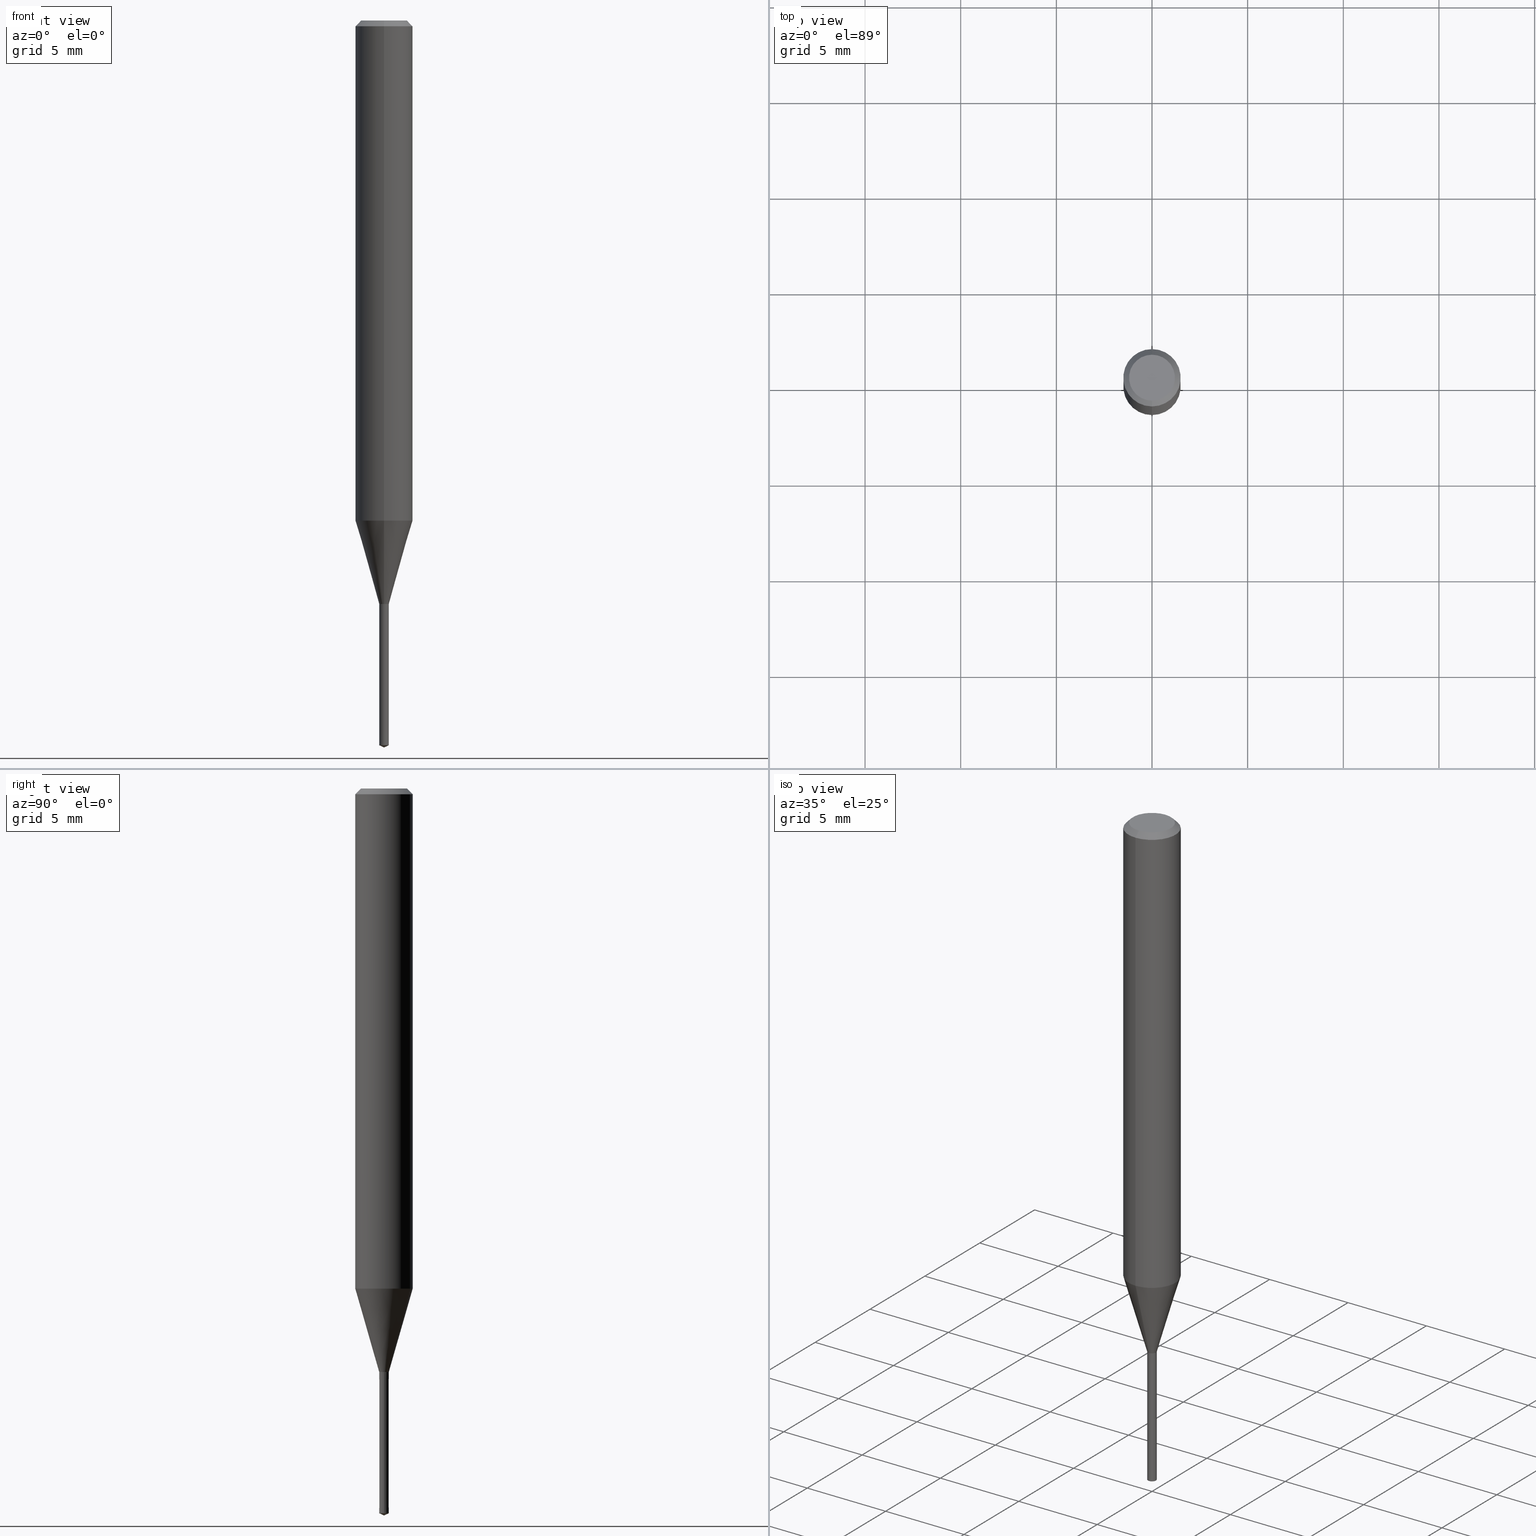
[diagram: canonical four-view strip — front | top / right | iso, engineering-drawing reading convention]
A machine part, canonical four-view strip (front | top / right | iso — engineering-drawing reading convention). The complete STEP part file that produces these views, byte-faithful:
ISO-10303-21;
HEADER;
FILE_DESCRIPTION(('no description'),'unknown implementation level');
FILE_NAME('UTDLX2050-075-Huellk.stp','  ',('CIMSOURCE GmbH'),('CADClick - KiM GmbH - www.kimweb.de'),'unknown preprocess','ACIS','unknown authorization');
FILE_SCHEMA(('automotive_design'));
ENDSEC;
DATA;
#1=MECHANICAL_DESIGN_GEOMETRIC_PRESENTATION_REPRESENTATION(' ',(#14,#15,#16,#17,#18,#19,#20,#21,#22,#23,#24,#25,#26,#27,#28,#29,#30,#31,#32,#33,#34,#35,#36,#37,#38,#39,#40,#41,#42,#43,#44,#45,#46,#47,#48,#49,#50,#51,#52,#53,#54,#55,#56,#57,#58,#59,#60,#61,#62,#63,#64,#65,#66,#67,#68,#69,#70,#71),#10);
#2=PRODUCT_DEFINITION_CONTEXT('',#72,'design');
#3=APPLICATION_PROTOCOL_DEFINITION('INTERNATIONAL STANDARD','automotive_design',1994,#72);
#4=PRODUCT_CATEGORY_RELATIONSHIP('NONE','NONE',#73,#74);
#5=SHAPE_DEFINITION_REPRESENTATION(#75,#76);
#6=PRODUCT_DEFINITION_CONTEXT('',#77,'design');
#7=APPLICATION_PROTOCOL_DEFINITION('INTERNATIONAL STANDARD','automotive_design',1994,#77);
#8=PRODUCT_CATEGORY_RELATIONSHIP('NONE','NONE',#78,#79);
#9=SHAPE_DEFINITION_REPRESENTATION(#80,#81);
#10= (GEOMETRIC_REPRESENTATION_CONTEXT(3)GLOBAL_UNCERTAINTY_ASSIGNED_CONTEXT((#84))GLOBAL_UNIT_ASSIGNED_CONTEXT((#86,#87,#88))REPRESENTATION_CONTEXT('NONE','WORKSPACE'));
#14=STYLED_ITEM('',(#90),#91);
#15=STYLED_ITEM('',(#92),#93);
#16=STYLED_ITEM('',(#94),#95);
#17=STYLED_ITEM('',(#96),#97);
#18=STYLED_ITEM('',(#98),#99);
#19=STYLED_ITEM('',(#100),#101);
#20=STYLED_ITEM('',(#102),#103);
#21=STYLED_ITEM('',(#104),#105);
#22=STYLED_ITEM('',(#106),#107);
#23=STYLED_ITEM('',(#108),#109);
#24=STYLED_ITEM('',(#110),#111);
#25=STYLED_ITEM('',(#112),#113);
#26=STYLED_ITEM('',(#114),#115);
#27=STYLED_ITEM('',(#116),#117);
#28=STYLED_ITEM('',(#118),#119);
#29=STYLED_ITEM('',(#120),#121);
#30=STYLED_ITEM('',(#122),#123);
#31=STYLED_ITEM('',(#124),#125);
#32=STYLED_ITEM('',(#126),#127);
#33=STYLED_ITEM('',(#128),#129);
#34=STYLED_ITEM('',(#130),#131);
#35=STYLED_ITEM('',(#132),#133);
#36=STYLED_ITEM('',(#134),#135);
#37=STYLED_ITEM('',(#136),#137);
#38=STYLED_ITEM('',(#138),#139);
#39=STYLED_ITEM('',(#140),#141);
#40=STYLED_ITEM('',(#142),#143);
#41=STYLED_ITEM('',(#144),#145);
#42=STYLED_ITEM('',(#146),#147);
#43=STYLED_ITEM('',(#148),#149);
#44=STYLED_ITEM('',(#150),#151);
#45=STYLED_ITEM('',(#152),#153);
#46=STYLED_ITEM('',(#154),#155);
#47=STYLED_ITEM('',(#156),#157);
#48=STYLED_ITEM('',(#158),#159);
#49=STYLED_ITEM('',(#160),#161);
#50=STYLED_ITEM('',(#162),#163);
#51=STYLED_ITEM('',(#164),#165);
#52=STYLED_ITEM('',(#166),#167);
#53=STYLED_ITEM('',(#168),#169);
#54=STYLED_ITEM('',(#170),#171);
#55=STYLED_ITEM('',(#172),#173);
#56=STYLED_ITEM('',(#174),#175);
#57=STYLED_ITEM('',(#176),#177);
#58=STYLED_ITEM('',(#178),#179);
#59=STYLED_ITEM('',(#180),#181);
#60=STYLED_ITEM('',(#182),#183);
#61=STYLED_ITEM('',(#184),#185);
#62=STYLED_ITEM('',(#186),#187);
#63=STYLED_ITEM('',(#188),#189);
#64=STYLED_ITEM('',(#190),#191);
#65=STYLED_ITEM('',(#192),#193);
#66=STYLED_ITEM('',(#194),#195);
#67=STYLED_ITEM('',(#196),#197);
#68=STYLED_ITEM('',(#198),#199);
#69=STYLED_ITEM('',(#200),#201);
#70=STYLED_ITEM('',(#202),#203);
#71=STYLED_ITEM('',(#204),#205);
#72=APPLICATION_CONTEXT(' ');
#73=PRODUCT_CATEGORY('part','NONE');
#74=PRODUCT_RELATED_PRODUCT_CATEGORY('detail',' ',(#206));
#75=PRODUCT_DEFINITION_SHAPE('NONE','NONE',#207);
#76=ADVANCED_BREP_SHAPE_REPRESENTATION('1',(#157,#208),#10);
#77=APPLICATION_CONTEXT(' ');
#78=PRODUCT_CATEGORY('part','NONE');
#79=PRODUCT_RELATED_PRODUCT_CATEGORY('detail',' ',(#209));
#80=PRODUCT_DEFINITION_SHAPE('NONE','NONE',#210);
#81=ADVANCED_BREP_SHAPE_REPRESENTATION('2',(#123,#211),#10);
#84=UNCERTAINTY_MEASURE_WITH_UNIT(LENGTH_MEASURE(1.0E-006),#86,'','');
#86= (CONVERSION_BASED_UNIT('MILLIMETRE',#214)LENGTH_UNIT()NAMED_UNIT(#217));
#87= (NAMED_UNIT(#219)PLANE_ANGLE_UNIT()SI_UNIT($,.RADIAN.));
#88= (NAMED_UNIT(#219)SOLID_ANGLE_UNIT()SI_UNIT($,.STERADIAN.));
#90=PRESENTATION_STYLE_ASSIGNMENT((#225));
#91=ADVANCED_FACE('',(#226),#227,.T.);
#92=PRESENTATION_STYLE_ASSIGNMENT((#228));
#93=ADVANCED_FACE('',(#229),#230,.T.);
#94=PRESENTATION_STYLE_ASSIGNMENT((#231));
#95=ADVANCED_FACE('',(#232),#233,.T.);
#96=PRESENTATION_STYLE_ASSIGNMENT((#234));
#97=ADVANCED_FACE('',(#235),#236,.T.);
#98=PRESENTATION_STYLE_ASSIGNMENT((#237));
#99=EDGE_CURVE('',#169,#187,#238,.T.);
#100=PRESENTATION_STYLE_ASSIGNMENT((#239));
#101=VERTEX_POINT('',#240);
#102=PRESENTATION_STYLE_ASSIGNMENT((#241));
#103=ADVANCED_FACE('',(#242),#243,.T.);
#104=PRESENTATION_STYLE_ASSIGNMENT((#244));
#105=EDGE_CURVE('',#167,#185,#245,.T.);
#106=PRESENTATION_STYLE_ASSIGNMENT((#246));
#107=EDGE_CURVE('',#141,#117,#247,.T.);
#108=PRESENTATION_STYLE_ASSIGNMENT((#248));
#109=ADVANCED_FACE('',(#249),#250,.T.);
#110=PRESENTATION_STYLE_ASSIGNMENT((#251));
#111=EDGE_CURVE('',#101,#179,#252,.T.);
#112=PRESENTATION_STYLE_ASSIGNMENT((#253));
#113=EDGE_CURVE('',#135,#177,#254,.T.);
#114=PRESENTATION_STYLE_ASSIGNMENT((#255));
#115=EDGE_CURVE('',#127,#179,#256,.T.);
#116=PRESENTATION_STYLE_ASSIGNMENT((#257));
#117=VERTEX_POINT('',#258);
#118=PRESENTATION_STYLE_ASSIGNMENT((#259));
#119=ADVANCED_FACE('',(#260),#261,.T.);
#120=PRESENTATION_STYLE_ASSIGNMENT((#262));
#121=ADVANCED_FACE('',(#263),#264,.T.);
#122=PRESENTATION_STYLE_ASSIGNMENT((#265));
#123=MANIFOLD_SOLID_BREP('2',#266);
#124=PRESENTATION_STYLE_ASSIGNMENT((#267));
#125=EDGE_CURVE('',#127,#135,#268,.T.);
#126=PRESENTATION_STYLE_ASSIGNMENT((#269));
#127=VERTEX_POINT('',#270);
#128=PRESENTATION_STYLE_ASSIGNMENT((#271));
#129=EDGE_CURVE('',#167,#127,#272,.T.);
#130=PRESENTATION_STYLE_ASSIGNMENT((#273));
#131=EDGE_CURVE('',#177,#197,#274,.T.);
#132=PRESENTATION_STYLE_ASSIGNMENT((#275));
#133=EDGE_CURVE('',#193,#195,#276,.T.);
#134=PRESENTATION_STYLE_ASSIGNMENT((#277));
#135=VERTEX_POINT('',#278);
#136=PRESENTATION_STYLE_ASSIGNMENT((#279));
#137=ADVANCED_FACE('',(#280),#281,.T.);
#138=PRESENTATION_STYLE_ASSIGNMENT((#282));
#139=ADVANCED_FACE('',(#283),#284,.T.);
#140=PRESENTATION_STYLE_ASSIGNMENT((#285));
#141=VERTEX_POINT('',#286);
#142=PRESENTATION_STYLE_ASSIGNMENT((#287));
#143=EDGE_CURVE('',#101,#135,#288,.T.);
#144=PRESENTATION_STYLE_ASSIGNMENT((#289));
#145=EDGE_CURVE('',#141,#153,#290,.T.);
#146=PRESENTATION_STYLE_ASSIGNMENT((#291));
#147=EDGE_CURVE('',#187,#117,#292,.T.);
#148=PRESENTATION_STYLE_ASSIGNMENT((#293));
#149=EDGE_CURVE('',#187,#153,#294,.T.);
#150=PRESENTATION_STYLE_ASSIGNMENT((#295));
#151=ADVANCED_FACE('',(#296),#297,.T.);
#152=PRESENTATION_STYLE_ASSIGNMENT((#298));
#153=VERTEX_POINT('',#299);
#154=PRESENTATION_STYLE_ASSIGNMENT((#300));
#155=EDGE_CURVE('',#135,#101,#301,.T.);
#156=PRESENTATION_STYLE_ASSIGNMENT((#302));
#157=MANIFOLD_SOLID_BREP('1',#303);
#158=PRESENTATION_STYLE_ASSIGNMENT((#304));
#159=EDGE_CURVE('',#197,#177,#305,.T.);
#160=PRESENTATION_STYLE_ASSIGNMENT((#306));
#161=EDGE_CURVE('',#193,#167,#307,.T.);
#162=PRESENTATION_STYLE_ASSIGNMENT((#308));
#163=EDGE_CURVE('',#185,#195,#309,.T.);
#164=PRESENTATION_STYLE_ASSIGNMENT((#310));
#165=EDGE_CURVE('',#153,#187,#311,.T.);
#166=PRESENTATION_STYLE_ASSIGNMENT((#312));
#167=VERTEX_POINT('',#313);
#168=PRESENTATION_STYLE_ASSIGNMENT((#314));
#169=VERTEX_POINT('',#315);
#170=PRESENTATION_STYLE_ASSIGNMENT((#316));
#171=EDGE_CURVE('',#117,#141,#317,.T.);
#172=PRESENTATION_STYLE_ASSIGNMENT((#318));
#173=EDGE_CURVE('',#197,#101,#319,.T.);
#174=PRESENTATION_STYLE_ASSIGNMENT((#320));
#175=ADVANCED_FACE('',(#321),#322,.T.);
#176=PRESENTATION_STYLE_ASSIGNMENT((#323));
#177=VERTEX_POINT('',#324);
#178=PRESENTATION_STYLE_ASSIGNMENT((#325));
#179=VERTEX_POINT('',#326);
#180=PRESENTATION_STYLE_ASSIGNMENT((#327));
#181=EDGE_CURVE('',#195,#193,#328,.T.);
#182=PRESENTATION_STYLE_ASSIGNMENT((#329));
#183=EDGE_CURVE('',#179,#127,#330,.T.);
#184=PRESENTATION_STYLE_ASSIGNMENT((#331));
#185=VERTEX_POINT('',#332);
#186=PRESENTATION_STYLE_ASSIGNMENT((#333));
#187=VERTEX_POINT('',#334);
#188=PRESENTATION_STYLE_ASSIGNMENT((#335));
#189=ADVANCED_FACE('',(#336),#337,.T.);
#190=PRESENTATION_STYLE_ASSIGNMENT((#338));
#191=EDGE_CURVE('',#153,#169,#339,.T.);
#192=PRESENTATION_STYLE_ASSIGNMENT((#340));
#193=VERTEX_POINT('',#341);
#194=PRESENTATION_STYLE_ASSIGNMENT((#342));
#195=VERTEX_POINT('',#343);
#196=PRESENTATION_STYLE_ASSIGNMENT((#344));
#197=VERTEX_POINT('',#345);
#198=PRESENTATION_STYLE_ASSIGNMENT((#346));
#199=ADVANCED_FACE('',(#347),#348,.T.);
#200=PRESENTATION_STYLE_ASSIGNMENT((#349));
#201=ADVANCED_FACE('',(#350),#351,.T.);
#202=PRESENTATION_STYLE_ASSIGNMENT((#352));
#203=EDGE_CURVE('',#185,#167,#353,.T.);
#204=PRESENTATION_STYLE_ASSIGNMENT((#354));
#205=EDGE_CURVE('',#179,#185,#355,.T.);
#206=PRODUCT('1','1','PART-1-DESC',(#356));
#207=PRODUCT_DEFINITION('NONE','NONE',#357,#2);
#208=AXIS2_PLACEMENT_3D('',#358,#359,#360);
#209=PRODUCT('2','2','PART-2-DESC',(#361));
#210=PRODUCT_DEFINITION('NONE','NONE',#362,#6);
#211=AXIS2_PLACEMENT_3D('',#363,#364,#365);
#214=LENGTH_MEASURE_WITH_UNIT(LENGTH_MEASURE(1.0),#366);
#217=DIMENSIONAL_EXPONENTS(1.0,0.0,0.0,0.0,0.0,0.0,0.0);
#219=DIMENSIONAL_EXPONENTS(0.0,0.0,0.0,0.0,0.0,0.0,0.0);
#225=SURFACE_STYLE_USAGE(.BOTH.,#367);
#226=FACE_OUTER_BOUND('',#368,.T.);
#227=CONICAL_SURFACE('',#369,0.875,0.2793216271515);
#228=SURFACE_STYLE_USAGE(.BOTH.,#370);
#229=FACE_OUTER_BOUND('',#371,.T.);
#230=CONICAL_SURFACE('',#372,0.2505,0.00013543853327867);
#231=SURFACE_STYLE_USAGE(.BOTH.,#373);
#232=FACE_OUTER_BOUND('',#374,.T.);
#233=CYLINDRICAL_SURFACE('',#375,1.5);
#234=SURFACE_STYLE_USAGE(.BOTH.,#376);
#235=FACE_OUTER_BOUND('',#377,.T.);
#236=CYLINDRICAL_SURFACE('',#378,1.5);
#237=CURVE_STYLE('',#379,POSITIVE_LENGTH_MEASURE(1.0E-006),#380);
#238=LINE('',#381,#382);
#239=POINT_STYLE(' ',#383,POSITIVE_LENGTH_MEASURE(1.0E-006),#384);
#240=CARTESIAN_POINT('',(3.06151588455594E-017,-0.25,-30.4991339745962));
#241=SURFACE_STYLE_USAGE(.BOTH.,#385);
#242=FACE_OUTER_BOUND('',#386,.T.);
#243=CONICAL_SURFACE('',#387,0.2505,0.00013543853327867);
#244=CURVE_STYLE('',#388,POSITIVE_LENGTH_MEASURE(1.0E-006),#389);
#245=CIRCLE('',#390,1.5);
#246=CURVE_STYLE('',#391,POSITIVE_LENGTH_MEASURE(1.0E-006),#392);
#247=CIRCLE('',#393,0.251);
#248=SURFACE_STYLE_USAGE(.BOTH.,#394);
#249=FACE_OUTER_BOUND('',#395,.T.);
#250=CONICAL_SURFACE('',#396,1.35,0.785398163397447);
#251=CURVE_STYLE('',#397,POSITIVE_LENGTH_MEASURE(1.0E-006),#398);
#252=LINE('',#399,#400);
#253=CURVE_STYLE('',#401,POSITIVE_LENGTH_MEASURE(1.0E-006),#402);
#254=LINE('',#403,#404);
#255=CURVE_STYLE('',#405,POSITIVE_LENGTH_MEASURE(1.0E-006),#406);
#256=CIRCLE('',#407,1.5);
#257=POINT_STYLE(' ',#408,POSITIVE_LENGTH_MEASURE(1.0E-006),#409);
#258=CARTESIAN_POINT('',(0.251,3.07376194809417E-017,-30.5));
#259=SURFACE_STYLE_USAGE(.BOTH.,#410);
#260=FACE_OUTER_BOUND('',#411,.T.);
#261=CONICAL_SURFACE('',#412,0.125,1.13446402870872);
#262=SURFACE_STYLE_USAGE(.BOTH.,#413);
#263=FACE_OUTER_BOUND('',#414,.T.);
#264=PLANE('',#415);
#265=SURFACE_STYLE_USAGE(.BOTH.,#416);
#266=CLOSED_SHELL('',(#119,#93,#121,#103,#139));
#267=CURVE_STYLE('',#417,POSITIVE_LENGTH_MEASURE(1.0E-006),#418);
#268=LINE('',#419,#420);
#269=POINT_STYLE(' ',#421,POSITIVE_LENGTH_MEASURE(1.0E-006),#422);
#270=CARTESIAN_POINT('',(0.0,1.5,-26.141));
#271=CURVE_STYLE('',#423,POSITIVE_LENGTH_MEASURE(1.0E-006),#424);
#272=LINE('',#425,#426);
#273=CURVE_STYLE('',#427,POSITIVE_LENGTH_MEASURE(1.0E-006),#428);
#274=CIRCLE('',#429,0.2505);
#275=CURVE_STYLE('',#430,POSITIVE_LENGTH_MEASURE(1.0E-006),#431);
#276=CIRCLE('',#432,1.2);
#277=POINT_STYLE(' ',#433,POSITIVE_LENGTH_MEASURE(1.0E-006),#434);
#278=CARTESIAN_POINT('',(0.0,0.25,-30.4991339745962));
#279=SURFACE_STYLE_USAGE(.BOTH.,#435);
#280=FACE_OUTER_BOUND('',#436,.T.);
#281=CONICAL_SURFACE('',#437,1.35,0.785398163397447);
#282=SURFACE_STYLE_USAGE(.BOTH.,#438);
#283=FACE_OUTER_BOUND('',#439,.T.);
#284=CONICAL_SURFACE('',#440,0.125,1.13446402870872);
#285=POINT_STYLE(' ',#441,POSITIVE_LENGTH_MEASURE(1.0E-006),#442);
#286=CARTESIAN_POINT('',(-0.251,0.0,-30.5));
#287=CURVE_STYLE('',#443,POSITIVE_LENGTH_MEASURE(1.0E-006),#444);
#288=CIRCLE('',#445,0.25);
#289=CURVE_STYLE('',#446,POSITIVE_LENGTH_MEASURE(1.0E-006),#447);
#290=LINE('',#448,#449);
#291=CURVE_STYLE('',#450,POSITIVE_LENGTH_MEASURE(1.0E-006),#451);
#292=LINE('',#452,#453);
#293=CURVE_STYLE('',#454,POSITIVE_LENGTH_MEASURE(1.0E-006),#455);
#294=CIRCLE('',#456,0.25);
#295=SURFACE_STYLE_USAGE(.BOTH.,#457);
#296=FACE_OUTER_BOUND('',#458,.T.);
#297=CONICAL_SURFACE('',#459,0.875,0.2793216271515);
#298=POINT_STYLE(' ',#460,POSITIVE_LENGTH_MEASURE(1.0E-006),#461);
#299=CARTESIAN_POINT('',(-0.25,0.0,-37.88342309));
#300=CURVE_STYLE('',#462,POSITIVE_LENGTH_MEASURE(1.0E-006),#463);
#301=CIRCLE('',#464,0.25);
#302=SURFACE_STYLE_USAGE(.BOTH.,#465);
#303=CLOSED_SHELL('',(#189,#151,#95,#109,#201,#137,#97,#91,#175,#199));
#304=CURVE_STYLE('',#466,POSITIVE_LENGTH_MEASURE(1.0E-006),#467);
#305=CIRCLE('',#468,0.2505);
#306=CURVE_STYLE('',#469,POSITIVE_LENGTH_MEASURE(1.0E-006),#470);
#307=LINE('',#471,#472);
#308=CURVE_STYLE('',#473,POSITIVE_LENGTH_MEASURE(1.0E-006),#474);
#309=LINE('',#475,#476);
#310=CURVE_STYLE('',#477,POSITIVE_LENGTH_MEASURE(1.0E-006),#478);
#311=CIRCLE('',#479,0.25);
#312=POINT_STYLE(' ',#480,POSITIVE_LENGTH_MEASURE(1.0E-006),#481);
#313=CARTESIAN_POINT('',(0.0,1.5,-0.300000000000001));
#314=POINT_STYLE(' ',#482,POSITIVE_LENGTH_MEASURE(1.0E-006),#483);
#315=CARTESIAN_POINT('',(0.0,0.0,-38.0));
#316=CURVE_STYLE('',#484,POSITIVE_LENGTH_MEASURE(1.0E-006),#485);
#317=CIRCLE('',#486,0.251);
#318=CURVE_STYLE('',#487,POSITIVE_LENGTH_MEASURE(1.0E-006),#488);
#319=LINE('',#489,#490);
#320=SURFACE_STYLE_USAGE(.BOTH.,#491);
#321=FACE_OUTER_BOUND('',#492,.T.);
#322=CONICAL_SURFACE('',#493,0.25025,0.523598775598408);
#323=POINT_STYLE(' ',#494,POSITIVE_LENGTH_MEASURE(1.0E-006),#495);
#324=CARTESIAN_POINT('',(0.0,0.2505,-30.5));
#325=POINT_STYLE(' ',#496,POSITIVE_LENGTH_MEASURE(1.0E-006),#497);
#326=CARTESIAN_POINT('',(1.83690953073357E-016,-1.5,-26.141));
#327=CURVE_STYLE('',#498,POSITIVE_LENGTH_MEASURE(1.0E-006),#499);
#328=CIRCLE('',#500,1.2);
#329=CURVE_STYLE('',#501,POSITIVE_LENGTH_MEASURE(1.0E-006),#502);
#330=CIRCLE('',#503,1.5);
#331=POINT_STYLE(' ',#504,POSITIVE_LENGTH_MEASURE(1.0E-006),#505);
#332=CARTESIAN_POINT('',(1.83690953073357E-016,-1.5,-0.300000000000001));
#333=POINT_STYLE(' ',#506,POSITIVE_LENGTH_MEASURE(1.0E-006),#507);
#334=CARTESIAN_POINT('',(0.25,3.06151588455594E-017,-37.88342309));
#335=SURFACE_STYLE_USAGE(.BOTH.,#508);
#336=FACE_OUTER_BOUND('',#509,.T.);
#337=CONICAL_SURFACE('',#510,0.25025,0.523598775598408);
#338=CURVE_STYLE('',#511,POSITIVE_LENGTH_MEASURE(1.0E-006),#512);
#339=LINE('',#513,#514);
#340=POINT_STYLE(' ',#515,POSITIVE_LENGTH_MEASURE(1.0E-006),#516);
#341=CARTESIAN_POINT('',(0.0,1.2,0.0));
#342=POINT_STYLE(' ',#517,POSITIVE_LENGTH_MEASURE(1.0E-006),#518);
#343=CARTESIAN_POINT('',(1.46952762458685E-016,-1.2,0.0));
#344=POINT_STYLE(' ',#519,POSITIVE_LENGTH_MEASURE(1.0E-006),#520);
#345=CARTESIAN_POINT('',(3.06763891632506E-017,-0.2505,-30.5));
#346=SURFACE_STYLE_USAGE(.BOTH.,#521);
#347=FACE_OUTER_BOUND('',#522,.T.);
#348=PLANE('',#523);
#349=SURFACE_STYLE_USAGE(.BOTH.,#524);
#350=FACE_OUTER_BOUND('',#525,.T.);
#351=PLANE('',#526);
#352=CURVE_STYLE('',#527,POSITIVE_LENGTH_MEASURE(1.0E-006),#528);
#353=CIRCLE('',#529,1.5);
#354=CURVE_STYLE('',#530,POSITIVE_LENGTH_MEASURE(1.0E-006),#531);
#355=LINE('',#532,#533);
#356=PRODUCT_CONTEXT('',#72,'mechanical');
#357=PRODUCT_DEFINITION_FORMATION_WITH_SPECIFIED_SOURCE(' ','NONE',#206,.NOT_KNOWN.);
#358=CARTESIAN_POINT('',(0.0,0.0,0.0));
#359=DIRECTION('',(0.0,0.0,1.0));
#360=DIRECTION('',(1.0,0.0,0.0));
#361=PRODUCT_CONTEXT('',#77,'mechanical');
#362=PRODUCT_DEFINITION_FORMATION_WITH_SPECIFIED_SOURCE(' ','NONE',#209,.NOT_KNOWN.);
#363=CARTESIAN_POINT('',(0.0,0.0,0.0));
#364=DIRECTION('',(0.0,0.0,1.0));
#365=DIRECTION('',(1.0,0.0,0.0));
#366= (NAMED_UNIT(#217)LENGTH_UNIT()SI_UNIT(.MILLI.,.METRE.));
#367=SURFACE_SIDE_STYLE('',(#535));
#368=EDGE_LOOP('',(#536,#537,#538,#539));
#369=AXIS2_PLACEMENT_3D('',#540,#541,#542);
#370=SURFACE_SIDE_STYLE('',(#543));
#371=EDGE_LOOP('',(#544,#545,#546,#547));
#372=AXIS2_PLACEMENT_3D('',#548,#549,#550);
#373=SURFACE_SIDE_STYLE('',(#551));
#374=EDGE_LOOP('',(#552,#553,#554,#555));
#375=AXIS2_PLACEMENT_3D('',#556,#557,#558);
#376=SURFACE_SIDE_STYLE('',(#559));
#377=EDGE_LOOP('',(#560,#561,#562,#563));
#378=AXIS2_PLACEMENT_3D('',#564,#565,#566);
#379=DRAUGHTING_PRE_DEFINED_CURVE_FONT('continuous');
#380=COLOUR_RGB('',0.800000011920929,0.800000011920929,0.800000011920929);
#381=CARTESIAN_POINT('',(0.125,1.53075794227797E-017,-37.941711545));
#382=VECTOR('',#567,1.0);
#383=PRE_DEFINED_MARKER('');
#384=COLOUR_RGB('',0.498039215803146,0.498039215803146,0.498039215803146);
#385=SURFACE_SIDE_STYLE('',(#568));
#386=EDGE_LOOP('',(#569,#570,#571,#572));
#387=AXIS2_PLACEMENT_3D('',#573,#574,#575);
#388=DRAUGHTING_PRE_DEFINED_CURVE_FONT('continuous');
#389=COLOUR_RGB('',0.498039215803146,0.498039215803146,0.498039215803146);
#390=AXIS2_PLACEMENT_3D('',#576,#577,#578);
#391=DRAUGHTING_PRE_DEFINED_CURVE_FONT('continuous');
#392=COLOUR_RGB('',0.800000011920929,0.800000011920929,0.800000011920929);
#393=AXIS2_PLACEMENT_3D('',#579,#580,#581);
#394=SURFACE_SIDE_STYLE('',(#582));
#395=EDGE_LOOP('',(#583,#584,#585,#586));
#396=AXIS2_PLACEMENT_3D('',#587,#588,#589);
#397=DRAUGHTING_PRE_DEFINED_CURVE_FONT('continuous');
#398=COLOUR_RGB('',0.498039215803146,0.498039215803146,0.498039215803146);
#399=CARTESIAN_POINT('',(1.07153055959458E-016,-0.875,-28.3200669872981));
#400=VECTOR('',#590,1.0);
#401=DRAUGHTING_PRE_DEFINED_CURVE_FONT('continuous');
#402=COLOUR_RGB('',0.498039215803146,0.498039215803146,0.498039215803146);
#403=CARTESIAN_POINT('',(-3.0645774004405E-017,0.25025,-30.4995669872981));
#404=VECTOR('',#591,1.0);
#405=DRAUGHTING_PRE_DEFINED_CURVE_FONT('continuous');
#406=COLOUR_RGB('',0.498039215803146,0.498039215803146,0.498039215803146);
#407=AXIS2_PLACEMENT_3D('',#592,#593,#594);
#408=PRE_DEFINED_MARKER('');
#409=COLOUR_RGB('',0.800000011920929,0.800000011920929,0.800000011920929);
#410=SURFACE_SIDE_STYLE('',(#595));
#411=EDGE_LOOP('',(#596,#597,#598));
#412=AXIS2_PLACEMENT_3D('',#599,#600,#601);
#413=SURFACE_SIDE_STYLE('',(#602));
#414=EDGE_LOOP('',(#603,#604));
#415=AXIS2_PLACEMENT_3D('',#605,#606,#607);
#416=SURFACE_SIDE_STYLE('',(#608));
#417=DRAUGHTING_PRE_DEFINED_CURVE_FONT('continuous');
#418=COLOUR_RGB('',0.498039215803146,0.498039215803146,0.498039215803146);
#419=CARTESIAN_POINT('',(-1.07153055959458E-016,0.875,-28.3200669872981));
#420=VECTOR('',#609,1.0);
#421=PRE_DEFINED_MARKER('');
#422=COLOUR_RGB('',0.498039215803146,0.498039215803146,0.498039215803146);
#423=DRAUGHTING_PRE_DEFINED_CURVE_FONT('continuous');
#424=COLOUR_RGB('',0.498039215803146,0.498039215803146,0.498039215803146);
#425=CARTESIAN_POINT('',(-1.83690953073357E-016,1.5,-13.2205));
#426=VECTOR('',#610,1.0);
#427=DRAUGHTING_PRE_DEFINED_CURVE_FONT('continuous');
#428=COLOUR_RGB('',0.498039215803146,0.498039215803146,0.498039215803146);
#429=AXIS2_PLACEMENT_3D('',#611,#612,#613);
#430=DRAUGHTING_PRE_DEFINED_CURVE_FONT('continuous');
#431=COLOUR_RGB('',0.498039215803146,0.498039215803146,0.498039215803146);
#432=AXIS2_PLACEMENT_3D('',#614,#615,#616);
#433=PRE_DEFINED_MARKER('');
#434=COLOUR_RGB('',0.498039215803146,0.498039215803146,0.498039215803146);
#435=SURFACE_SIDE_STYLE('',(#617));
#436=EDGE_LOOP('',(#618,#619,#620,#621));
#437=AXIS2_PLACEMENT_3D('',#622,#623,#624);
#438=SURFACE_SIDE_STYLE('',(#625));
#439=EDGE_LOOP('',(#626,#627,#628));
#440=AXIS2_PLACEMENT_3D('',#629,#630,#631);
#441=PRE_DEFINED_MARKER('');
#442=COLOUR_RGB('',0.800000011920929,0.800000011920929,0.800000011920929);
#443=DRAUGHTING_PRE_DEFINED_CURVE_FONT('continuous');
#444=COLOUR_RGB('',0.498039215803146,0.498039215803146,0.498039215803146);
#445=AXIS2_PLACEMENT_3D('',#632,#633,#634);
#446=DRAUGHTING_PRE_DEFINED_CURVE_FONT('continuous');
#447=COLOUR_RGB('',0.800000011920929,0.800000011920929,0.800000011920929);
#448=CARTESIAN_POINT('',(-0.2505,-3.06763891632506E-017,-34.191711545));
#449=VECTOR('',#635,1.0);
#450=DRAUGHTING_PRE_DEFINED_CURVE_FONT('continuous');
#451=COLOUR_RGB('',0.800000011920929,0.800000011920929,0.800000011920929);
#452=CARTESIAN_POINT('',(0.2505,3.06763891632506E-017,-34.191711545));
#453=VECTOR('',#636,1.0);
#454=DRAUGHTING_PRE_DEFINED_CURVE_FONT('continuous');
#455=COLOUR_RGB('',0.800000011920929,0.800000011920929,0.800000011920929);
#456=AXIS2_PLACEMENT_3D('',#637,#638,#639);
#457=SURFACE_SIDE_STYLE('',(#640));
#458=EDGE_LOOP('',(#641,#642,#643,#644));
#459=AXIS2_PLACEMENT_3D('',#645,#646,#647);
#460=PRE_DEFINED_MARKER('');
#461=COLOUR_RGB('',0.800000011920929,0.800000011920929,0.800000011920929);
#462=DRAUGHTING_PRE_DEFINED_CURVE_FONT('continuous');
#463=COLOUR_RGB('',0.498039215803146,0.498039215803146,0.498039215803146);
#464=AXIS2_PLACEMENT_3D('',#648,#649,#650);
#465=SURFACE_SIDE_STYLE('',(#651));
#466=DRAUGHTING_PRE_DEFINED_CURVE_FONT('continuous');
#467=COLOUR_RGB('',0.498039215803146,0.498039215803146,0.498039215803146);
#468=AXIS2_PLACEMENT_3D('',#652,#653,#654);
#469=DRAUGHTING_PRE_DEFINED_CURVE_FONT('continuous');
#470=COLOUR_RGB('',0.498039215803146,0.498039215803146,0.498039215803146);
#471=CARTESIAN_POINT('',(-1.65321857766021E-016,1.35,-0.150000000000002));
#472=VECTOR('',#655,1.0);
#473=DRAUGHTING_PRE_DEFINED_CURVE_FONT('continuous');
#474=COLOUR_RGB('',0.498039215803146,0.498039215803146,0.498039215803146);
#475=CARTESIAN_POINT('',(1.65321857766021E-016,-1.35,-0.150000000000002));
#476=VECTOR('',#656,1.0);
#477=DRAUGHTING_PRE_DEFINED_CURVE_FONT('continuous');
#478=COLOUR_RGB('',0.800000011920929,0.800000011920929,0.800000011920929);
#479=AXIS2_PLACEMENT_3D('',#657,#658,#659);
#480=PRE_DEFINED_MARKER('');
#481=COLOUR_RGB('',0.498039215803146,0.498039215803146,0.498039215803146);
#482=PRE_DEFINED_MARKER('');
#483=COLOUR_RGB('',0.800000011920929,0.800000011920929,0.800000011920929);
#484=DRAUGHTING_PRE_DEFINED_CURVE_FONT('continuous');
#485=COLOUR_RGB('',0.800000011920929,0.800000011920929,0.800000011920929);
#486=AXIS2_PLACEMENT_3D('',#660,#661,#662);
#487=DRAUGHTING_PRE_DEFINED_CURVE_FONT('continuous');
#488=COLOUR_RGB('',0.498039215803146,0.498039215803146,0.498039215803146);
#489=CARTESIAN_POINT('',(3.0645774004405E-017,-0.25025,-30.4995669872981));
#490=VECTOR('',#663,1.0);
#491=SURFACE_SIDE_STYLE('',(#664));
#492=EDGE_LOOP('',(#665,#666,#667,#668));
#493=AXIS2_PLACEMENT_3D('',#669,#670,#671);
#494=PRE_DEFINED_MARKER('');
#495=COLOUR_RGB('',0.498039215803146,0.498039215803146,0.498039215803146);
#496=PRE_DEFINED_MARKER('');
#497=COLOUR_RGB('',0.498039215803146,0.498039215803146,0.498039215803146);
#498=DRAUGHTING_PRE_DEFINED_CURVE_FONT('continuous');
#499=COLOUR_RGB('',0.498039215803146,0.498039215803146,0.498039215803146);
#500=AXIS2_PLACEMENT_3D('',#672,#673,#674);
#501=DRAUGHTING_PRE_DEFINED_CURVE_FONT('continuous');
#502=COLOUR_RGB('',0.498039215803146,0.498039215803146,0.498039215803146);
#503=AXIS2_PLACEMENT_3D('',#675,#676,#677);
#504=PRE_DEFINED_MARKER('');
#505=COLOUR_RGB('',0.498039215803146,0.498039215803146,0.498039215803146);
#506=PRE_DEFINED_MARKER('');
#507=COLOUR_RGB('',0.800000011920929,0.800000011920929,0.800000011920929);
#508=SURFACE_SIDE_STYLE('',(#678));
#509=EDGE_LOOP('',(#679,#680,#681,#682));
#510=AXIS2_PLACEMENT_3D('',#683,#684,#685);
#511=DRAUGHTING_PRE_DEFINED_CURVE_FONT('continuous');
#512=COLOUR_RGB('',0.800000011920929,0.800000011920929,0.800000011920929);
#513=CARTESIAN_POINT('',(-0.125,-1.53075794227797E-017,-37.941711545));
#514=VECTOR('',#686,1.0);
#515=PRE_DEFINED_MARKER('');
#516=COLOUR_RGB('',0.498039215803146,0.498039215803146,0.498039215803146);
#517=PRE_DEFINED_MARKER('');
#518=COLOUR_RGB('',0.498039215803146,0.498039215803146,0.498039215803146);
#519=PRE_DEFINED_MARKER('');
#520=COLOUR_RGB('',0.498039215803146,0.498039215803146,0.498039215803146);
#521=SURFACE_SIDE_STYLE('',(#687));
#522=EDGE_LOOP('',(#688,#689));
#523=AXIS2_PLACEMENT_3D('',#690,#691,#692);
#524=SURFACE_SIDE_STYLE('',(#693));
#525=EDGE_LOOP('',(#694,#695));
#526=AXIS2_PLACEMENT_3D('',#696,#697,#698);
#527=DRAUGHTING_PRE_DEFINED_CURVE_FONT('continuous');
#528=COLOUR_RGB('',0.498039215803146,0.498039215803146,0.498039215803146);
#529=AXIS2_PLACEMENT_3D('',#699,#700,#701);
#530=DRAUGHTING_PRE_DEFINED_CURVE_FONT('continuous');
#531=COLOUR_RGB('',0.498039215803146,0.498039215803146,0.498039215803146);
#532=CARTESIAN_POINT('',(1.83690953073357E-016,-1.5,-13.2205));
#533=VECTOR('',#702,1.0);
#535=SURFACE_STYLE_FILL_AREA(#703);
#536=ORIENTED_EDGE('',*,*,#125,.T.);
#537=ORIENTED_EDGE('',*,*,#143,.F.);
#538=ORIENTED_EDGE('',*,*,#111,.T.);
#539=ORIENTED_EDGE('',*,*,#183,.T.);
#540=CARTESIAN_POINT('',(0.0,0.0,-28.3200669872981));
#541=DIRECTION('',(-0.0,-0.0,1.0));
#542=DIRECTION('',(0.0,1.0,0.0));
#543=SURFACE_STYLE_FILL_AREA(#704);
#544=ORIENTED_EDGE('',*,*,#145,.F.);
#545=ORIENTED_EDGE('',*,*,#107,.T.);
#546=ORIENTED_EDGE('',*,*,#147,.F.);
#547=ORIENTED_EDGE('',*,*,#165,.F.);
#548=CARTESIAN_POINT('',(0.0,0.0,-34.191711545));
#549=DIRECTION('',(-0.0,-0.0,1.0));
#550=DIRECTION('',(-1.0,0.0,0.0));
#551=SURFACE_STYLE_FILL_AREA(#705);
#552=ORIENTED_EDGE('',*,*,#129,.F.);
#553=ORIENTED_EDGE('',*,*,#105,.T.);
#554=ORIENTED_EDGE('',*,*,#205,.F.);
#555=ORIENTED_EDGE('',*,*,#115,.F.);
#556=CARTESIAN_POINT('',(0.0,0.0,-13.2205));
#557=DIRECTION('',(-0.0,-0.0,1.0));
#558=DIRECTION('',(0.0,1.0,0.0));
#559=SURFACE_STYLE_FILL_AREA(#706);
#560=ORIENTED_EDGE('',*,*,#129,.T.);
#561=ORIENTED_EDGE('',*,*,#183,.F.);
#562=ORIENTED_EDGE('',*,*,#205,.T.);
#563=ORIENTED_EDGE('',*,*,#203,.T.);
#564=CARTESIAN_POINT('',(0.0,0.0,-13.2205));
#565=DIRECTION('',(-0.0,-0.0,1.0));
#566=DIRECTION('',(0.0,1.0,0.0));
#567=DIRECTION('',(0.906307793338904,1.10987028224156E-016,0.422618248225472));
#568=SURFACE_STYLE_FILL_AREA(#707);
#569=ORIENTED_EDGE('',*,*,#145,.T.);
#570=ORIENTED_EDGE('',*,*,#149,.F.);
#571=ORIENTED_EDGE('',*,*,#147,.T.);
#572=ORIENTED_EDGE('',*,*,#171,.T.);
#573=CARTESIAN_POINT('',(0.0,0.0,-34.191711545));
#574=DIRECTION('',(-0.0,-0.0,1.0));
#575=DIRECTION('',(-1.0,0.0,0.0));
#576=CARTESIAN_POINT('',(0.0,0.0,-0.300000000000001));
#577=DIRECTION('',(0.0,0.0,-1.0));
#578=DIRECTION('',(0.0,1.0,0.0));
#579=CARTESIAN_POINT('',(0.0,0.0,-30.5));
#580=DIRECTION('',(0.0,0.0,-1.0));
#581=DIRECTION('',(-1.0,0.0,0.0));
#582=SURFACE_STYLE_FILL_AREA(#708);
#583=ORIENTED_EDGE('',*,*,#161,.F.);
#584=ORIENTED_EDGE('',*,*,#133,.T.);
#585=ORIENTED_EDGE('',*,*,#163,.F.);
#586=ORIENTED_EDGE('',*,*,#105,.F.);
#587=CARTESIAN_POINT('',(0.0,0.0,-0.150000000000002));
#588=DIRECTION('',(0.0,-0.0,-1.0));
#589=DIRECTION('',(0.0,1.0,0.0));
#590=DIRECTION('',(3.37628418430251E-017,-0.275703631110853,0.961242689330999));
#591=DIRECTION('',(-6.12303176911305E-017,0.500000000000095,-0.866025403784384));
#592=CARTESIAN_POINT('',(0.0,0.0,-26.141));
#593=DIRECTION('',(0.0,0.0,-1.0));
#594=DIRECTION('',(0.0,1.0,0.0));
#595=SURFACE_STYLE_FILL_AREA(#709);
#596=ORIENTED_EDGE('',*,*,#99,.F.);
#597=ORIENTED_EDGE('',*,*,#191,.F.);
#598=ORIENTED_EDGE('',*,*,#165,.T.);
#599=CARTESIAN_POINT('',(0.0,0.0,-37.941711545));
#600=DIRECTION('',(-0.0,-0.0,1.0));
#601=DIRECTION('',(-1.0,0.0,0.0));
#602=SURFACE_STYLE_FILL_AREA(#710);
#603=ORIENTED_EDGE('',*,*,#107,.F.);
#604=ORIENTED_EDGE('',*,*,#171,.F.);
#605=CARTESIAN_POINT('',(-0.1255,0.0,-30.5));
#606=DIRECTION('',(0.0,0.0,1.0));
#607=DIRECTION('',(1.0,0.0,0.0));
#608=SURFACE_STYLE_FILL_AREA(#711);
#609=DIRECTION('',(3.37628418430251E-017,-0.275703631110853,-0.961242689330999));
#610=DIRECTION('',(0.0,0.0,-1.0));
#611=CARTESIAN_POINT('',(0.0,0.0,-30.5));
#612=DIRECTION('',(0.0,0.0,-1.0));
#613=DIRECTION('',(0.0,1.0,0.0));
#614=CARTESIAN_POINT('',(0.0,0.0,0.0));
#615=DIRECTION('',(0.0,0.0,-1.0));
#616=DIRECTION('',(0.0,1.0,0.0));
#617=SURFACE_STYLE_FILL_AREA(#712);
#618=ORIENTED_EDGE('',*,*,#161,.T.);
#619=ORIENTED_EDGE('',*,*,#203,.F.);
#620=ORIENTED_EDGE('',*,*,#163,.T.);
#621=ORIENTED_EDGE('',*,*,#181,.T.);
#622=CARTESIAN_POINT('',(0.0,0.0,-0.150000000000002));
#623=DIRECTION('',(0.0,-0.0,-1.0));
#624=DIRECTION('',(0.0,1.0,0.0));
#625=SURFACE_STYLE_FILL_AREA(#713);
#626=ORIENTED_EDGE('',*,*,#99,.T.);
#627=ORIENTED_EDGE('',*,*,#149,.T.);
#628=ORIENTED_EDGE('',*,*,#191,.T.);
#629=CARTESIAN_POINT('',(0.0,0.0,-37.941711545));
#630=DIRECTION('',(-0.0,-0.0,1.0));
#631=DIRECTION('',(-1.0,0.0,0.0));
#632=CARTESIAN_POINT('',(0.0,0.0,-30.4991339745962));
#633=DIRECTION('',(0.0,0.0,-1.0));
#634=DIRECTION('',(0.0,1.0,0.0));
#635=DIRECTION('',(0.000135438532864599,1.65858887898369E-020,-0.999999990828202));
#636=DIRECTION('',(0.000135438532864599,1.65858887898369E-020,0.999999990828202));
#637=CARTESIAN_POINT('',(0.0,0.0,-37.88342309));
#638=DIRECTION('',(0.0,0.0,-1.0));
#639=DIRECTION('',(-1.0,0.0,0.0));
#640=SURFACE_STYLE_FILL_AREA(#714);
#641=ORIENTED_EDGE('',*,*,#125,.F.);
#642=ORIENTED_EDGE('',*,*,#115,.T.);
#643=ORIENTED_EDGE('',*,*,#111,.F.);
#644=ORIENTED_EDGE('',*,*,#155,.F.);
#645=CARTESIAN_POINT('',(0.0,0.0,-28.3200669872981));
#646=DIRECTION('',(-0.0,-0.0,1.0));
#647=DIRECTION('',(0.0,1.0,0.0));
#648=CARTESIAN_POINT('',(0.0,0.0,-30.4991339745962));
#649=DIRECTION('',(0.0,0.0,-1.0));
#650=DIRECTION('',(0.0,1.0,0.0));
#651=SURFACE_STYLE_FILL_AREA(#715);
#652=CARTESIAN_POINT('',(0.0,0.0,-30.5));
#653=DIRECTION('',(0.0,0.0,-1.0));
#654=DIRECTION('',(0.0,1.0,0.0));
#655=DIRECTION('',(-8.65927457071934E-017,0.707106781186546,-0.707106781186549));
#656=DIRECTION('',(-8.65927457071934E-017,0.707106781186546,0.707106781186549));
#657=CARTESIAN_POINT('',(0.0,0.0,-37.88342309));
#658=DIRECTION('',(0.0,0.0,-1.0));
#659=DIRECTION('',(-1.0,0.0,0.0));
#660=CARTESIAN_POINT('',(0.0,0.0,-30.5));
#661=DIRECTION('',(0.0,0.0,-1.0));
#662=DIRECTION('',(-1.0,0.0,0.0));
#663=DIRECTION('',(-6.12303176911305E-017,0.500000000000095,0.866025403784384));
#664=SURFACE_STYLE_FILL_AREA(#716);
#665=ORIENTED_EDGE('',*,*,#113,.T.);
#666=ORIENTED_EDGE('',*,*,#159,.F.);
#667=ORIENTED_EDGE('',*,*,#173,.T.);
#668=ORIENTED_EDGE('',*,*,#143,.T.);
#669=CARTESIAN_POINT('',(0.0,0.0,-30.4995669872981));
#670=DIRECTION('',(0.0,-0.0,-1.0));
#671=DIRECTION('',(0.0,1.0,0.0));
#672=CARTESIAN_POINT('',(0.0,0.0,0.0));
#673=DIRECTION('',(0.0,0.0,-1.0));
#674=DIRECTION('',(0.0,1.0,0.0));
#675=CARTESIAN_POINT('',(0.0,0.0,-26.141));
#676=DIRECTION('',(0.0,0.0,-1.0));
#677=DIRECTION('',(0.0,1.0,0.0));
#678=SURFACE_STYLE_FILL_AREA(#717);
#679=ORIENTED_EDGE('',*,*,#113,.F.);
#680=ORIENTED_EDGE('',*,*,#155,.T.);
#681=ORIENTED_EDGE('',*,*,#173,.F.);
#682=ORIENTED_EDGE('',*,*,#131,.F.);
#683=CARTESIAN_POINT('',(0.0,0.0,-30.4995669872981));
#684=DIRECTION('',(0.0,-0.0,-1.0));
#685=DIRECTION('',(0.0,1.0,0.0));
#686=DIRECTION('',(0.906307793338904,1.10987028224156E-016,-0.422618248225472));
#687=SURFACE_STYLE_FILL_AREA(#718);
#688=ORIENTED_EDGE('',*,*,#131,.T.);
#689=ORIENTED_EDGE('',*,*,#159,.T.);
#690=CARTESIAN_POINT('',(0.0,0.12525,-30.5));
#691=DIRECTION('',(0.0,0.0,-1.0));
#692=DIRECTION('',(0.0,1.0,0.0));
#693=SURFACE_STYLE_FILL_AREA(#719);
#694=ORIENTED_EDGE('',*,*,#133,.F.);
#695=ORIENTED_EDGE('',*,*,#181,.F.);
#696=CARTESIAN_POINT('',(0.0,0.6,0.0));
#697=DIRECTION('',(-0.0,0.0,1.0));
#698=DIRECTION('',(0.0,-1.0,0.0));
#699=CARTESIAN_POINT('',(0.0,0.0,-0.300000000000001));
#700=DIRECTION('',(0.0,0.0,-1.0));
#701=DIRECTION('',(0.0,1.0,0.0));
#702=DIRECTION('',(-0.0,-0.0,1.0));
#703=FILL_AREA_STYLE('',(#720));
#704=FILL_AREA_STYLE('',(#721));
#705=FILL_AREA_STYLE('',(#722));
#706=FILL_AREA_STYLE('',(#723));
#707=FILL_AREA_STYLE('',(#724));
#708=FILL_AREA_STYLE('',(#725));
#709=FILL_AREA_STYLE('',(#726));
#710=FILL_AREA_STYLE('',(#727));
#711=FILL_AREA_STYLE('',(#728));
#712=FILL_AREA_STYLE('',(#729));
#713=FILL_AREA_STYLE('',(#730));
#714=FILL_AREA_STYLE('',(#731));
#715=FILL_AREA_STYLE('',(#732));
#716=FILL_AREA_STYLE('',(#733));
#717=FILL_AREA_STYLE('',(#734));
#718=FILL_AREA_STYLE('',(#735));
#719=FILL_AREA_STYLE('',(#736));
#720=FILL_AREA_STYLE_COLOUR('',#737);
#721=FILL_AREA_STYLE_COLOUR('',#738);
#722=FILL_AREA_STYLE_COLOUR('',#739);
#723=FILL_AREA_STYLE_COLOUR('',#740);
#724=FILL_AREA_STYLE_COLOUR('',#741);
#725=FILL_AREA_STYLE_COLOUR('',#742);
#726=FILL_AREA_STYLE_COLOUR('',#743);
#727=FILL_AREA_STYLE_COLOUR('',#744);
#728=FILL_AREA_STYLE_COLOUR('',#745);
#729=FILL_AREA_STYLE_COLOUR('',#746);
#730=FILL_AREA_STYLE_COLOUR('',#747);
#731=FILL_AREA_STYLE_COLOUR('',#748);
#732=FILL_AREA_STYLE_COLOUR('',#749);
#733=FILL_AREA_STYLE_COLOUR('',#750);
#734=FILL_AREA_STYLE_COLOUR('',#751);
#735=FILL_AREA_STYLE_COLOUR('',#752);
#736=FILL_AREA_STYLE_COLOUR('',#753);
#737=COLOUR_RGB('',0.498039215803146,0.498039215803146,0.498039215803146);
#738=COLOUR_RGB('',0.800000011920929,0.800000011920929,0.800000011920929);
#739=COLOUR_RGB('',0.498039215803146,0.498039215803146,0.498039215803146);
#740=COLOUR_RGB('',0.498039215803146,0.498039215803146,0.498039215803146);
#741=COLOUR_RGB('',0.800000011920929,0.800000011920929,0.800000011920929);
#742=COLOUR_RGB('',0.498039215803146,0.498039215803146,0.498039215803146);
#743=COLOUR_RGB('',0.800000011920929,0.800000011920929,0.800000011920929);
#744=COLOUR_RGB('',0.800000011920929,0.800000011920929,0.800000011920929);
#745=COLOUR_RGB('',0.800000011920929,0.800000011920929,0.800000011920929);
#746=COLOUR_RGB('',0.498039215803146,0.498039215803146,0.498039215803146);
#747=COLOUR_RGB('',0.800000011920929,0.800000011920929,0.800000011920929);
#748=COLOUR_RGB('',0.498039215803146,0.498039215803146,0.498039215803146);
#749=COLOUR_RGB('',0.498039215803146,0.498039215803146,0.498039215803146);
#750=COLOUR_RGB('',0.498039215803146,0.498039215803146,0.498039215803146);
#751=COLOUR_RGB('',0.498039215803146,0.498039215803146,0.498039215803146);
#752=COLOUR_RGB('',0.498039215803146,0.498039215803146,0.498039215803146);
#753=COLOUR_RGB('',0.498039215803146,0.498039215803146,0.498039215803146);
#754=AXIS2_PLACEMENT_3D('PCS',#755,#756,#757);
#755=CARTESIAN_POINT('',(0.0,0.0,0.0));
#756=DIRECTION('',(0.0,0.0,1.0));
#757=DIRECTION('',(1.0,0.0,0.0));
#758=AXIS2_PLACEMENT_3D('CIP',#759,#760,#761);
#759=CARTESIAN_POINT('',(0.0,0.0,-38.0));
#760=DIRECTION('',(0.0,0.0,1.0));
#761=DIRECTION('',(1.0,0.0,0.0));
#762=AXIS2_PLACEMENT_3D('CRP',#763,#764,#765);
#763=CARTESIAN_POINT('',(-0.25,0.0,-37.8834));
#764=DIRECTION('',(0.0,0.0,1.0));
#765=DIRECTION('',(1.0,0.0,0.0));
#766=AXIS2_PLACEMENT_3D('MCS',#767,#768,#769);
#767=CARTESIAN_POINT('',(0.0,0.0,-26.141));
#768=DIRECTION('',(0.0,0.0,1.0));
#769=DIRECTION('',(1.0,0.0,0.0));
#770=CONSTRUCTIVE_GEOMETRY_REPRESENTATION_RELATIONSHIP('coordinate systems',$,#76,#771);
#771=CONSTRUCTIVE_GEOMETRY_REPRESENTATION('coordinate systems',(#754,#758,#762,#766),#10);
ENDSEC;
END-ISO-10303-21;
